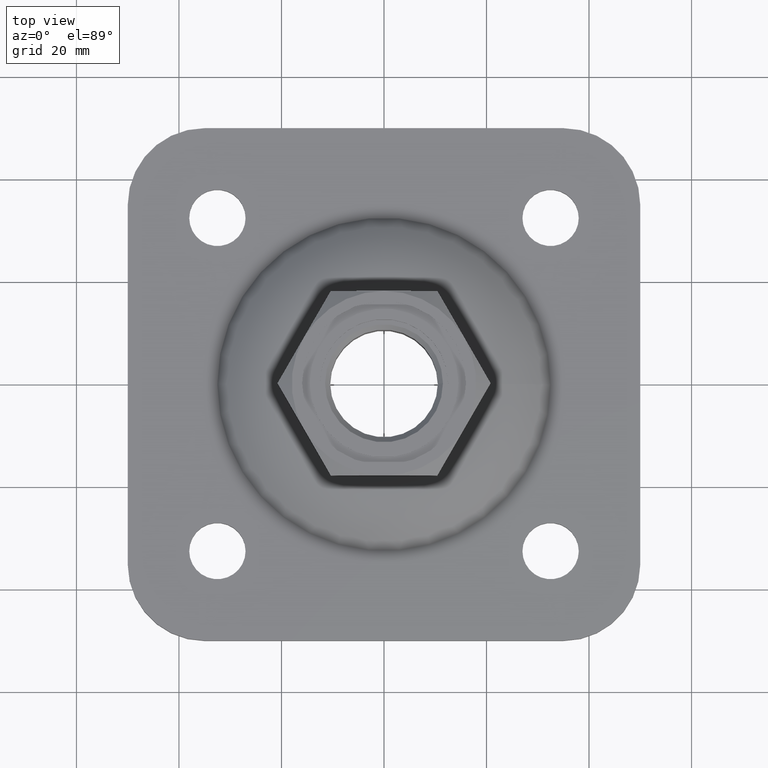
[diagram: clean part render]
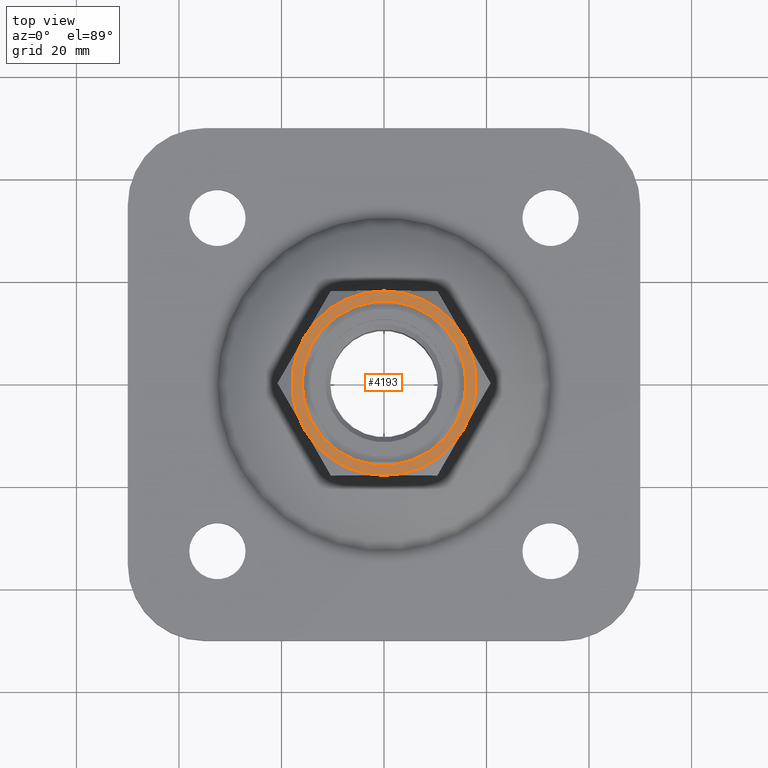
[diagram: same view with one face highlighted and labeled with its STEP entity id]
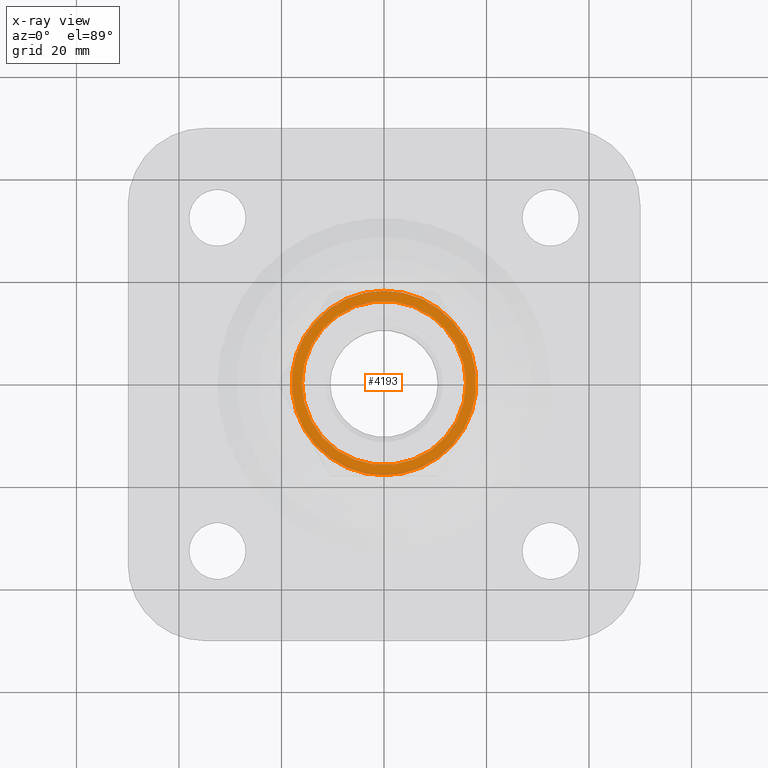
[diagram: x-ray of the same camera — body ghosted, the highlighted face saturated]
A machine part, top view. The second image highlights one B-rep face of the part: STEP entity #4193.
The next image is the same camera in x-ray: the body ghosted, the highlighted face saturated — about 0% of this face is hidden behind the body in this view.
In plain terms, the highlighted planar face has unit normal (0, -0, 1).
Its self-contained STEP definition (entity closure, byte-faithful):
#40 = CARTESIAN_POINT ( 'NONE',  ( 15.58845726811988897, 9.000000000000000000, 18.99999999999999645 ) ) ;
#48 = EDGE_LOOP ( 'NONE', ( #14795, #8810, #9983, #10779, #13747, #1488 ) ) ;
#63 = VERTEX_POINT ( 'NONE', #8941 ) ;
#888 = DIRECTION ( 'NONE',  ( -0.000000000000000000, 0.000000000000000000, -1.000000000000000000 ) ) ;
#1240 = CARTESIAN_POINT ( 'NONE',  ( 0.000000000000000000, 0.000000000000000000, 19.00000000000000000 ) ) ;
#1259 = EDGE_CURVE ( 'NONE', #10591, #63, #11348, .T. ) ;
#1488 = ORIENTED_EDGE ( 'NONE', *, *, #1259, .F. ) ;
#1940 = AXIS2_PLACEMENT_3D ( 'NONE', #2668, #11127, #5092 ) ;
#2079 = EDGE_CURVE ( 'NONE', #7543, #10591, #13206, .T. ) ;
#2117 = CARTESIAN_POINT ( 'NONE',  ( 0.000000000000000000, 0.000000000000000000, 19.00000000000000000 ) ) ;
#2668 = CARTESIAN_POINT ( 'NONE',  ( 0.000000000000000000, 0.000000000000000000, 19.00000000000000000 ) ) ;
#3050 = DIRECTION ( 'NONE',  ( 0.000000000000000000, -0.000000000000000000, 1.000000000000000000 ) ) ;
#3299 = CARTESIAN_POINT ( 'NONE',  ( 0.000000000000000000, 0.000000000000000000, 18.99999999999999645 ) ) ;
#3483 = CIRCLE ( 'NONE', #1940, 17.99999999999998934 ) ;
#3488 = AXIS2_PLACEMENT_3D ( 'NONE', #2117, #888, #11353 ) ;
#3683 = CIRCLE ( 'NONE', #9644, 16.00000000000000000 ) ;
#4147 = EDGE_CURVE ( 'NONE', #11249, #7543, #6330, .T. ) ;
#4193 = ADVANCED_FACE ( 'NONE', ( #9475, #5791 ), #11301, .T. ) ;
#5092 = DIRECTION ( 'NONE',  ( 1.000000000000000000, 0.000000000000000000, 0.000000000000000000 ) ) ;
#5106 = DIRECTION ( 'NONE',  ( -0.000000000000000000, 0.000000000000000000, -1.000000000000000000 ) ) ;
#5141 = CARTESIAN_POINT ( 'NONE',  ( -15.58845726811989074, 8.999999999999998224, 18.99999999999999645 ) ) ;
#5480 = CARTESIAN_POINT ( 'NONE',  ( 0.000000000000000000, 0.000000000000000000, 19.00000000000000000 ) ) ;
#5578 = DIRECTION ( 'NONE',  ( -0.000000000000000000, -0.000000000000000000, -1.000000000000000000 ) ) ;
#5791 = FACE_OUTER_BOUND ( 'NONE', #48, .T. ) ;
#5869 = DIRECTION ( 'NONE',  ( -0.000000000000000000, 0.000000000000000000, -1.000000000000000000 ) ) ;
#5882 = DIRECTION ( 'NONE',  ( 1.000000000000000000, 0.000000000000000000, 0.000000000000000000 ) ) ;
#6260 = CARTESIAN_POINT ( 'NONE',  ( 0.000000000000000000, 0.000000000000000000, 19.00000000000000000 ) ) ;
#6330 = CIRCLE ( 'NONE', #3488, 17.99999999999998934 ) ;
#6621 = DIRECTION ( 'NONE',  ( 1.000000000000000000, 0.000000000000000000, -0.000000000000000000 ) ) ;
#6931 = CARTESIAN_POINT ( 'NONE',  ( 15.58845726811989252, -9.000000000000000000, 18.99999999999999645 ) ) ;
#6945 = CIRCLE ( 'NONE', #12216, 17.99999999999998934 ) ;
#7165 = CIRCLE ( 'NONE', #14512, 17.99999999999999645 ) ;
#7186 = DIRECTION ( 'NONE',  ( 1.000000000000000000, 0.000000000000000000, 0.000000000000000000 ) ) ;
#7248 = AXIS2_PLACEMENT_3D ( 'NONE', #5480, #3050, #6621 ) ;
#7543 = VERTEX_POINT ( 'NONE', #6931 ) ;
#7925 = EDGE_CURVE ( 'NONE', #8069, #8069, #3683, .T. ) ;
#8069 = VERTEX_POINT ( 'NONE', #13986 ) ;
#8143 = CARTESIAN_POINT ( 'NONE',  ( 0.000000000000000000, 0.000000000000000000, 19.00000000000000000 ) ) ;
#8408 = CARTESIAN_POINT ( 'NONE',  ( 0.000000000000000000, 0.000000000000000000, 19.00000000000000000 ) ) ;
#8529 = DIRECTION ( 'NONE',  ( 1.000000000000000000, 0.000000000000000000, 0.000000000000000000 ) ) ;
#8810 = ORIENTED_EDGE ( 'NONE', *, *, #4147, .F. ) ;
#8941 = CARTESIAN_POINT ( 'NONE',  ( -15.58845726811988897, -9.000000000000001776, 18.99999999999999645 ) ) ;
#9198 = ORIENTED_EDGE ( 'NONE', *, *, #7925, .F. ) ;
#9435 = AXIS2_PLACEMENT_3D ( 'NONE', #6260, #5106, #8529 ) ;
#9475 = FACE_BOUND ( 'NONE', #11561, .T. ) ;
#9509 = DIRECTION ( 'NONE',  ( -0.000000000000000000, 0.000000000000000000, -1.000000000000000000 ) ) ;
#9591 = CARTESIAN_POINT ( 'NONE',  ( 0.000000000000000000, 17.99999999999999645, 18.99999999999999645 ) ) ;
#9644 = AXIS2_PLACEMENT_3D ( 'NONE', #8408, #14093, #5882 ) ;
#9983 = ORIENTED_EDGE ( 'NONE', *, *, #13282, .F. ) ;
#10591 = VERTEX_POINT ( 'NONE', #13090 ) ;
#10779 = ORIENTED_EDGE ( 'NONE', *, *, #14226, .F. ) ;
#11127 = DIRECTION ( 'NONE',  ( -0.000000000000000000, 0.000000000000000000, -1.000000000000000000 ) ) ;
#11249 = VERTEX_POINT ( 'NONE', #40 ) ;
#11301 = PLANE ( 'NONE',  #7248 ) ;
#11348 = CIRCLE ( 'NONE', #11597, 17.99999999999998934 ) ;
#11353 = DIRECTION ( 'NONE',  ( 1.000000000000000000, 0.000000000000000000, 0.000000000000000000 ) ) ;
#11408 = VERTEX_POINT ( 'NONE', #5141 ) ;
#11561 = EDGE_LOOP ( 'NONE', ( #9198 ) ) ;
#11597 = AXIS2_PLACEMENT_3D ( 'NONE', #1240, #9509, #7186 ) ;
#11633 = EDGE_CURVE ( 'NONE', #63, #11408, #6945, .T. ) ;
#12216 = AXIS2_PLACEMENT_3D ( 'NONE', #8143, #5869, #15302 ) ;
#12988 = VERTEX_POINT ( 'NONE', #9591 ) ;
#13090 = CARTESIAN_POINT ( 'NONE',  ( 0.000000000000000000, -17.99999999999999645, 18.99999999999999645 ) ) ;
#13206 = CIRCLE ( 'NONE', #9435, 17.99999999999998934 ) ;
#13282 = EDGE_CURVE ( 'NONE', #12988, #11249, #3483, .T. ) ;
#13747 = ORIENTED_EDGE ( 'NONE', *, *, #11633, .F. ) ;
#13842 = DIRECTION ( 'NONE',  ( -1.000000000000000000, 0.000000000000000000, 0.000000000000000000 ) ) ;
#13986 = CARTESIAN_POINT ( 'NONE',  ( 16.00000000000000000, 0.000000000000000000, 19.00000000000000000 ) ) ;
#14093 = DIRECTION ( 'NONE',  ( 0.000000000000000000, 0.000000000000000000, 1.000000000000000000 ) ) ;
#14226 = EDGE_CURVE ( 'NONE', #11408, #12988, #7165, .T. ) ;
#14512 = AXIS2_PLACEMENT_3D ( 'NONE', #3299, #5578, #13842 ) ;
#14795 = ORIENTED_EDGE ( 'NONE', *, *, #2079, .F. ) ;
#15302 = DIRECTION ( 'NONE',  ( 1.000000000000000000, 1.776356839400250465E-15, 0.000000000000000000 ) ) ;